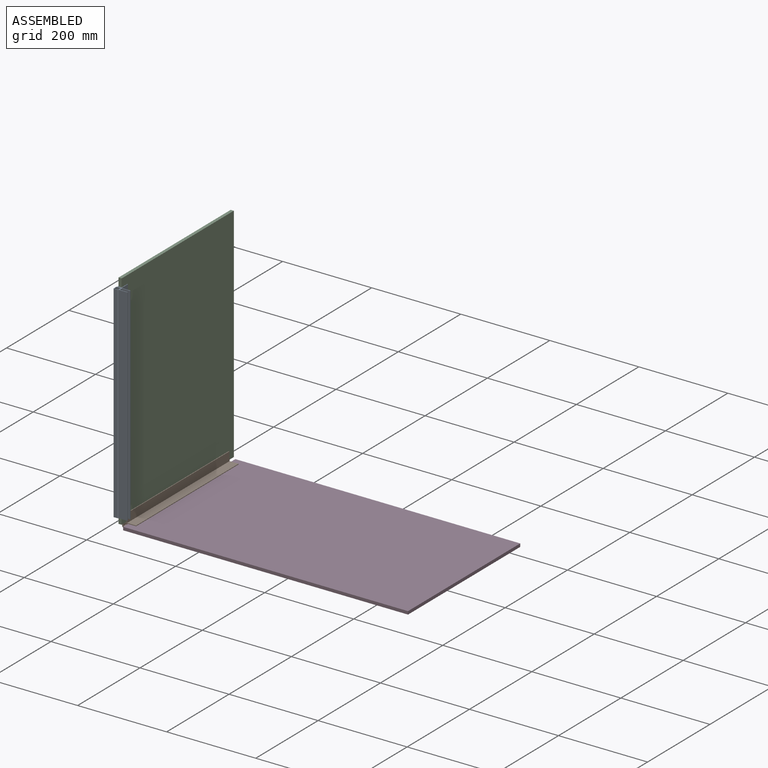
[diagram: assembled view]
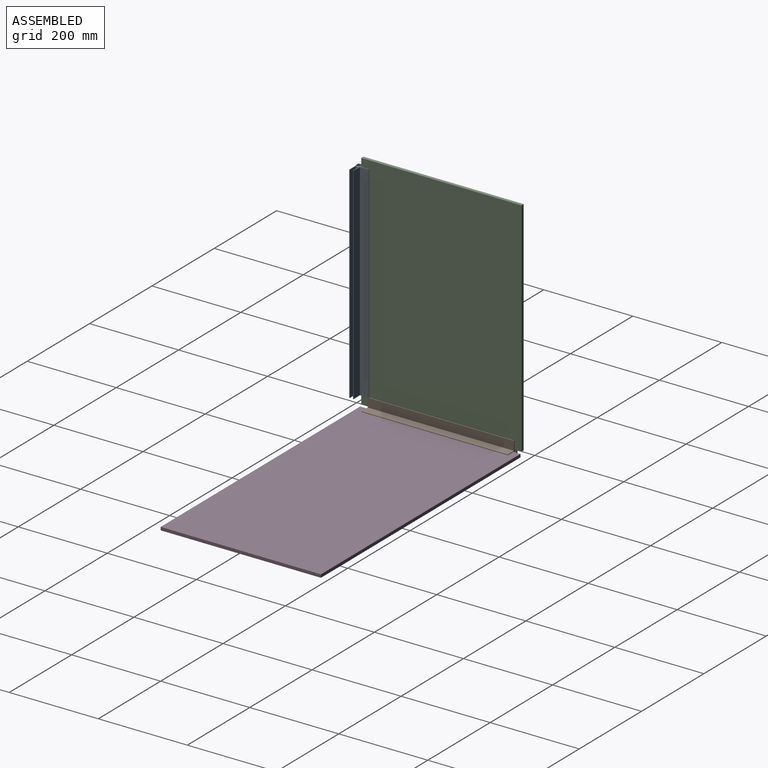
[diagram: assembled view, second angle]
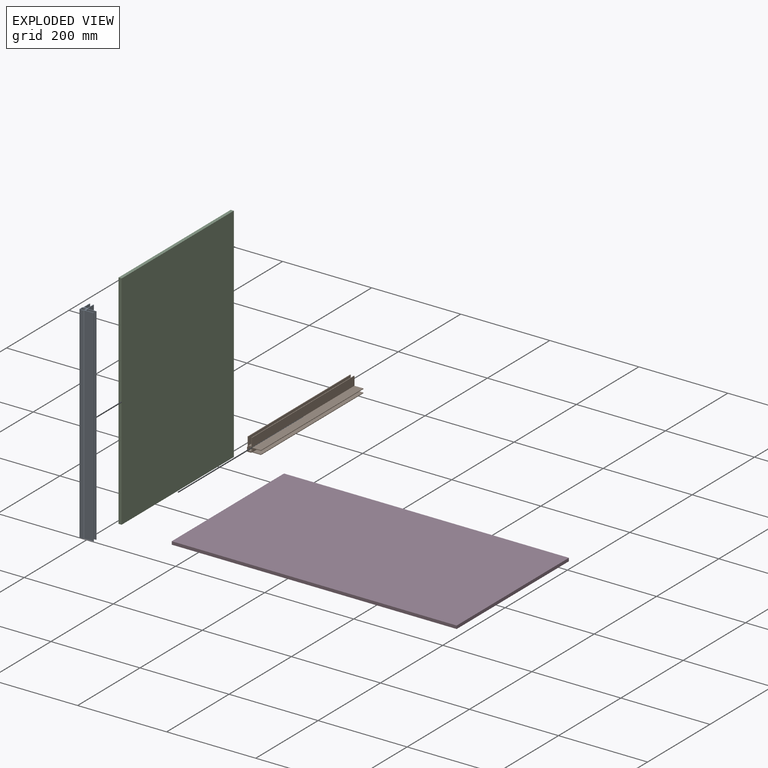
[diagram: exploded view]
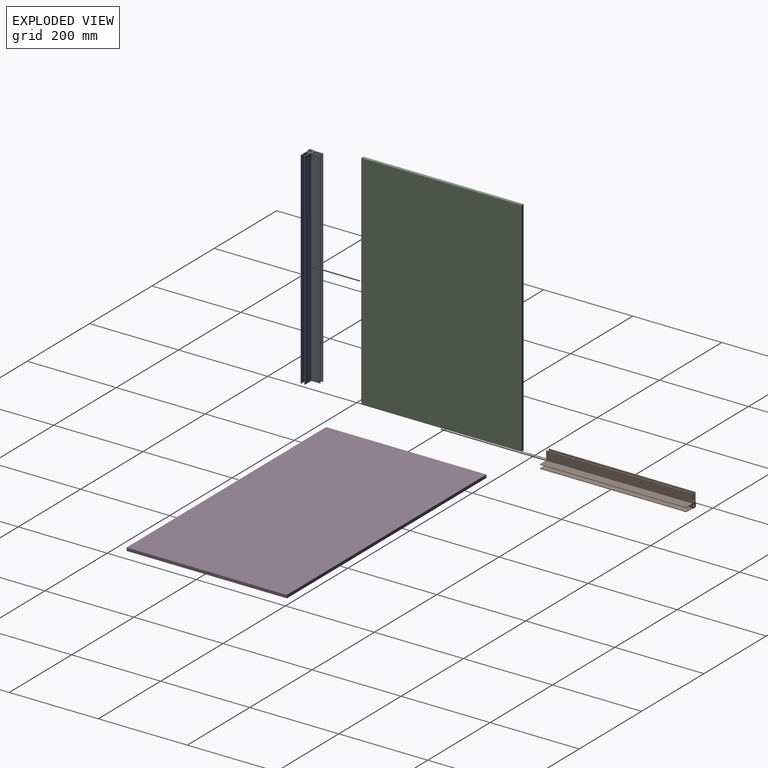
[diagram: exploded view, second angle]
ASSEMBLY  parts=4 mates=3
PART A: 25 faces, bbox 463.6x31.3x31.3 mm
  f0: plane 463.6x8.4mm, normal (0,0,-1), area 3894.2mm2, adj f1,f22,f23,f24
  f1: plane 463.6x8.4mm, normal (0,-1,0), area 3894.2mm2, adj f0,f2,f23,f24
  f2: plane 463.6x8.4mm, normal (0,0,1), area 3894.2mm2, adj f1,f22,f23,f24
  f3: plane 463.6x18.2mm, normal (0,1,0), area 8437.5mm2, adj f4,f21,f23,f24
  f4: plane 463.6x7mm, normal (0,0,-1), area 3245.2mm2, adj f3,f5,f23,f24
  f5: plane 463.6x18.2mm, normal (0,-1,0), area 8437.5mm2, adj f4,f6,f23,f24
  f6: plane 463.6x1.4mm, normal (0,0,-1), area 649mm2, adj f5,f7,f23,f24
  f7: plane 463.6x20.1mm, normal (0,1,0), area 9318.4mm2, adj f6,f8,f23,f24
  f8: plane 463.6x20.1mm, normal (0,0,-1), area 9318.4mm2, adj f7,f9,f23,f24
  f9: plane 463.6x1.4mm, normal (0,1,0), area 649mm2, adj f8,f10,f23,f24
  f10: plane 463.6x18.2mm, normal (0,0,1), area 8437.5mm2, adj f9,f11,f23,f24
  f11: plane 463.6x7mm, normal (0,1,0), area 3245.2mm2, adj f10,f12,f23,f24
  f12: plane 463.6x18.2mm, normal (0,0,-1), area 8437.5mm2, adj f11,f13,f23,f24
  f13: plane 463.6x1.4mm, normal (0,1,0), area 649mm2, adj f12,f14,f23,f24
  f14: plane 463.6x20.1mm, normal (0,0,1), area 9318.4mm2, adj f13,f15,f23,f24
  f15: plane 463.6x1.9mm, normal (0,0.59,0.81), area 1094.1mm2, adj f14,f16,f23,f24
  f16: plane 463.6x8mm, normal (0,0,1), area 3708.8mm2, adj f15,f17,f23,f24
  f17: plane 463.6x1.3mm, normal (0,-0.71,0.71), area 852.3mm2, adj f16,f18,f23,f24
  f18: plane 463.6x8mm, normal (0,-1,0), area 3708.8mm2, adj f17,f19,f23,f24
  f19: plane 463.6x1.9mm, normal (0,-0.81,-0.59), area 1094.1mm2, adj f18,f20,f23,f24
  f20: plane 463.6x20.1mm, normal (0,-1,0), area 9318.4mm2, adj f19,f21,f23,f24
  f21: plane 463.6x1.4mm, normal (0,0,-1), area 649mm2, adj f3,f20,f23,f24
  f22: plane 463.6x8.4mm, normal (0,1,0), area 3894.2mm2, adj f0,f2,f23,f24
  f23: plane 31.3x31.3mm, normal (1,0,0), area 190.5mm2, adj f0,f1,f2,f3,f4,f5,f6,f7
  f24: plane 31.3x31.3mm, normal (-1,0,0), area 190.5mm2, adj f0,f1,f2,f3,f4,f5,f6,f7
PART B: 25 faces, bbox 328.6x31.3x31.3 mm
  f0: plane 328.6x7mm, normal (0,0,-1), area 2300.2mm2, adj f1,f22,f23,f24
  f1: plane 328.6x7mm, normal (0,-1,0), area 2300.2mm2, adj f0,f2,f23,f24
  f2: plane 328.6x7mm, normal (0,0,1), area 2300.2mm2, adj f1,f22,f23,f24
  f3: plane 328.6x20.1mm, normal (0,0,1), area 6604.9mm2, adj f4,f21,f23,f24
  f4: plane 328.6x1.9mm, normal (0,0.59,0.81), area 775.5mm2, adj f3,f5,f23,f24
  f5: plane 328.6x8mm, normal (0,0,1), area 2628.8mm2, adj f4,f6,f23,f24
  f6: plane 328.6x1.3mm, normal (0,-0.71,0.71), area 604.1mm2, adj f5,f7,f23,f24
  f7: plane 328.6x8mm, normal (0,-1,0), area 2628.8mm2, adj f6,f8,f23,f24
  f8: plane 328.6x1.9mm, normal (0,-0.81,-0.59), area 775.5mm2, adj f7,f9,f23,f24
  f9: plane 328.6x20.1mm, normal (0,-1,0), area 6604.9mm2, adj f8,f10,f23,f24
  f10: plane 328.6x1.4mm, normal (0,0,-1), area 460mm2, adj f9,f11,f23,f24
  f11: plane 328.6x18.2mm, normal (0,1,0), area 5980.5mm2, adj f10,f12,f23,f24
  f12: plane 328.6x7mm, normal (0,0,-1), area 2300.2mm2, adj f11,f13,f23,f24
  f13: plane 328.6x18.2mm, normal (0,-1,0), area 5980.5mm2, adj f12,f14,f23,f24
  f14: plane 328.6x1.4mm, normal (0,0,-1), area 460mm2, adj f13,f15,f23,f24
  f15: plane 328.6x20.1mm, normal (0,1,0), area 6604.9mm2, adj f14,f16,f23,f24
  f16: plane 328.6x20.1mm, normal (0,0,-1), area 6604.9mm2, adj f15,f17,f23,f24
  f17: plane 328.6x1.4mm, normal (0,1,0), area 460mm2, adj f16,f18,f23,f24
  f18: plane 328.6x18.2mm, normal (0,0,1), area 5980.5mm2, adj f17,f19,f23,f24
  f19: plane 328.6x7mm, normal (0,1,0), area 2300.2mm2, adj f18,f20,f23,f24
  f20: plane 328.6x18.2mm, normal (0,0,-1), area 5980.5mm2, adj f19,f21,f23,f24
  f21: plane 328.6x1.4mm, normal (0,1,0), area 460mm2, adj f3,f20,f23,f24
  f22: plane 328.6x7mm, normal (0,1,0), area 2300.2mm2, adj f0,f2,f23,f24
  f23: plane 31.3x31.3mm, normal (1,0,0), area 212.1mm2, adj f0,f1,f2,f3,f4,f5,f6,f7
  f24: plane 31.3x31.3mm, normal (-1,0,0), area 212.1mm2, adj f0,f1,f2,f3,f4,f5,f6,f7
PART C: 6 faces, bbox 7x500x360 mm
  f0: plane 500x7mm, normal (0,0,1), area 3500mm2, adj f1,f3,f4,f5
  f1: plane 500x360mm, normal (-1,0,0), area 180000mm2, adj f0,f2,f4,f5
  f2: plane 500x7mm, normal (0,0,-1), area 3500mm2, adj f1,f3,f4,f5
  f3: plane 500x360mm, normal (1,0,0), area 180000mm2, adj f0,f2,f4,f5
  f4: plane 360x7mm, normal (0,-1,0), area 2520mm2, adj f0,f1,f2,f3
  f5: plane 360x7mm, normal (0,1,0), area 2520mm2, adj f0,f1,f2,f3
PART D: 6 faces, bbox 640x7x360 mm
  f0: plane 640x7mm, normal (0,0,1), area 4480mm2, adj f1,f3,f4,f5
  f1: plane 360x7mm, normal (-1,0,0), area 2520mm2, adj f0,f2,f4,f5
  f2: plane 640x7mm, normal (0,0,-1), area 4480mm2, adj f1,f3,f4,f5
  f3: plane 360x7mm, normal (1,0,0), area 2520mm2, adj f0,f2,f4,f5
  f4: plane 640x360mm, normal (0,1,0), area 230400mm2, adj f0,f1,f2,f3
  f5: plane 640x360mm, normal (0,-1,0), area 230400mm2, adj f0,f1,f2,f3
PLACE A rot(axis=(0.58,0.58,-0.58),120deg) t=(44.48,-362.93,545.22)mm
PLACE B rot(axis=(-0.71,-0.71,0),180deg) t=(44.48,-340.43,56.62)mm
PLACE C rot(axis=(0,0.71,-0.71),180deg) t=(47.98,124.89,63.42)mm
PLACE D rot(axis=(1,0,0),90deg) t=(691.28,124.89,53.12)mm
MATE fastened A.f4 <-> C.f0  axis (0,1,0) through (44.48,-356.13,313.42)mm
MATE fastened B.f12 <-> C.f5  axis (0,0,1) through (44.48,-176.13,63.42)mm
MATE fastened D.f1 <-> B.f19  axis (-1,0,0) through (51.28,-176.13,56.62)mm
